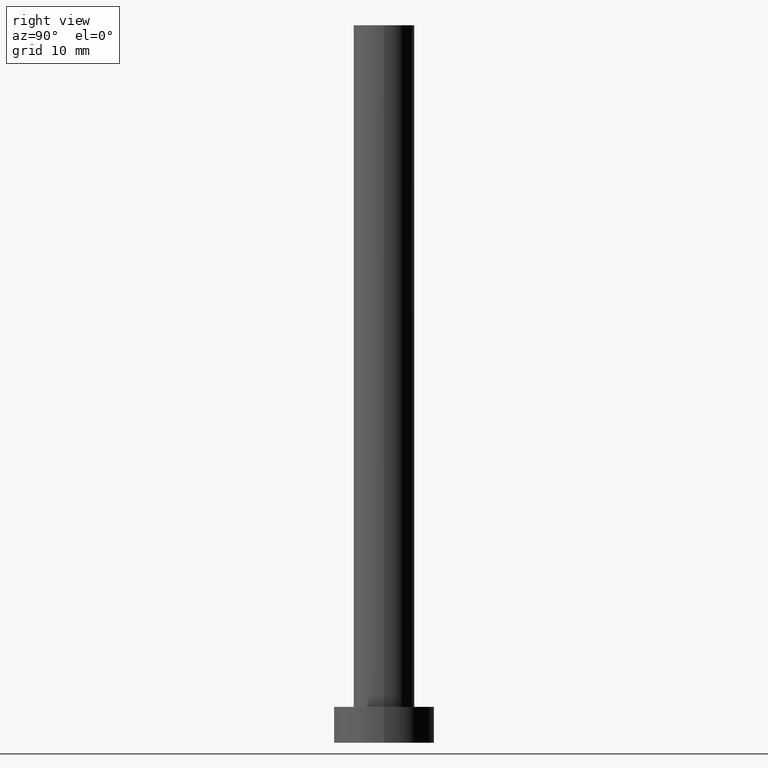
[diagram: clean part render]
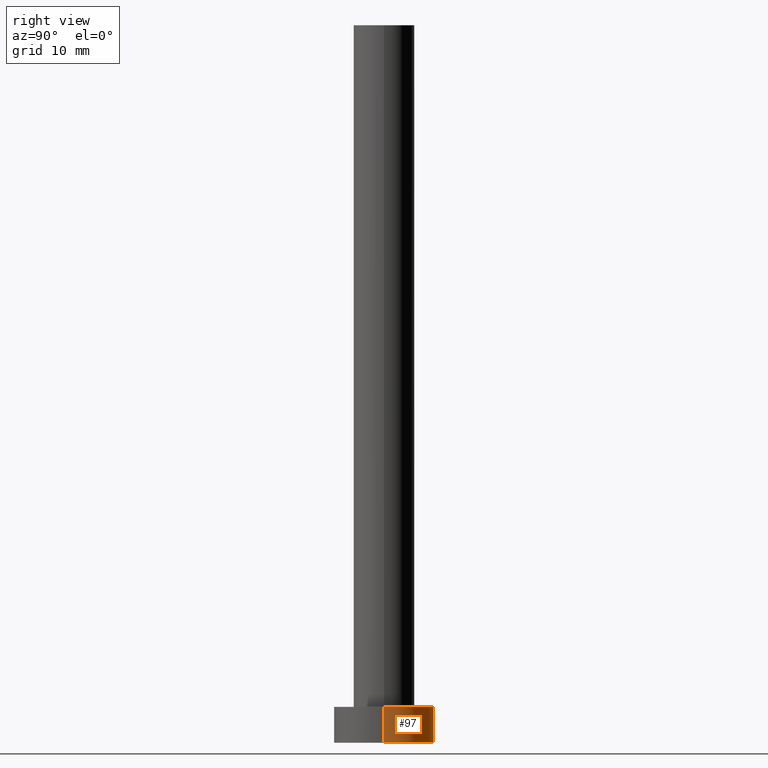
[diagram: same view with one face highlighted and labeled with its STEP entity id]
A machine part, right view. The second image highlights one B-rep face of the part: STEP entity #97.
In plain terms, the highlighted cylindrical surface (partial cylindrical patch) has radius 7 mm, axis along (-0, -0, -1).
Its self-contained STEP definition (entity closure, byte-faithful):
#4 = CARTESIAN_POINT ( 'NONE',  ( -7.000000000000000000, 0.000000000000000000, 5.000000000000000000 ) ) ;
#10 = CARTESIAN_POINT ( 'NONE',  ( 0.000000000000000000, 0.000000000000000000, 0.000000000000000000 ) ) ;
#11 = DIRECTION ( 'NONE',  ( 1.000000000000000000, 0.000000000000000000, 0.000000000000000000 ) ) ;
#16 = EDGE_CURVE ( 'NONE', #172, #148, #23, .T. ) ;
#17 = CARTESIAN_POINT ( 'NONE',  ( 7.000000000000000000, 8.572527594031473190E-16, 0.000000000000000000 ) ) ;
#19 = CARTESIAN_POINT ( 'NONE',  ( -7.000000000000000000, 0.000000000000000000, 0.000000000000000000 ) ) ;
#21 = VECTOR ( 'NONE', #232, 1000.000000000000000 ) ;
#23 = CIRCLE ( 'NONE', #30, 7.000000000000000000 ) ;
#26 = EDGE_CURVE ( 'NONE', #51, #90, #233, .T. ) ;
#30 = AXIS2_PLACEMENT_3D ( 'NONE', #10, #205, #11 ) ;
#37 = CARTESIAN_POINT ( 'NONE',  ( -7.000000000000000000, 0.000000000000000000, 5.000000000000000000 ) ) ;
#45 = EDGE_CURVE ( 'NONE', #90, #148, #108, .T. ) ;
#51 = VERTEX_POINT ( 'NONE', #113 ) ;
#68 = AXIS2_PLACEMENT_3D ( 'NONE', #211, #91, #170 ) ;
#73 = FACE_OUTER_BOUND ( 'NONE', #110, .T. ) ;
#87 = ORIENTED_EDGE ( 'NONE', *, *, #240, .T. ) ;
#90 = VERTEX_POINT ( 'NONE', #37 ) ;
#91 = DIRECTION ( 'NONE',  ( 0.000000000000000000, 0.000000000000000000, 1.000000000000000000 ) ) ;
#93 = ORIENTED_EDGE ( 'NONE', *, *, #16, .T. ) ;
#97 = ADVANCED_FACE ( 'NONE', ( #73 ), #198, .T. ) ;
#108 = LINE ( 'NONE', #4, #163 ) ;
#110 = EDGE_LOOP ( 'NONE', ( #224, #87, #93, #146 ) ) ;
#113 = CARTESIAN_POINT ( 'NONE',  ( 7.000000000000000000, 8.572527594031473190E-16, 5.000000000000000000 ) ) ;
#134 = LINE ( 'NONE', #138, #21 ) ;
#138 = CARTESIAN_POINT ( 'NONE',  ( 7.000000000000000000, 8.572527594031473190E-16, 5.000000000000000000 ) ) ;
#146 = ORIENTED_EDGE ( 'NONE', *, *, #45, .F. ) ;
#148 = VERTEX_POINT ( 'NONE', #19 ) ;
#159 = AXIS2_PLACEMENT_3D ( 'NONE', #252, #199, #174 ) ;
#163 = VECTOR ( 'NONE', #228, 1000.000000000000000 ) ;
#170 = DIRECTION ( 'NONE',  ( 1.000000000000000000, 0.000000000000000000, 0.000000000000000000 ) ) ;
#172 = VERTEX_POINT ( 'NONE', #17 ) ;
#174 = DIRECTION ( 'NONE',  ( -1.000000000000000000, 0.000000000000000000, 0.000000000000000000 ) ) ;
#198 = CYLINDRICAL_SURFACE ( 'NONE', #159, 7.000000000000000000 ) ;
#199 = DIRECTION ( 'NONE',  ( -0.000000000000000000, -0.000000000000000000, -1.000000000000000000 ) ) ;
#205 = DIRECTION ( 'NONE',  ( 0.000000000000000000, 0.000000000000000000, 1.000000000000000000 ) ) ;
#211 = CARTESIAN_POINT ( 'NONE',  ( 0.000000000000000000, 0.000000000000000000, 5.000000000000000000 ) ) ;
#224 = ORIENTED_EDGE ( 'NONE', *, *, #26, .F. ) ;
#228 = DIRECTION ( 'NONE',  ( -0.000000000000000000, -0.000000000000000000, -1.000000000000000000 ) ) ;
#232 = DIRECTION ( 'NONE',  ( -0.000000000000000000, -0.000000000000000000, -1.000000000000000000 ) ) ;
#233 = CIRCLE ( 'NONE', #68, 7.000000000000000000 ) ;
#240 = EDGE_CURVE ( 'NONE', #51, #172, #134, .T. ) ;
#252 = CARTESIAN_POINT ( 'NONE',  ( 0.000000000000000000, 0.000000000000000000, 5.000000000000000000 ) ) ;